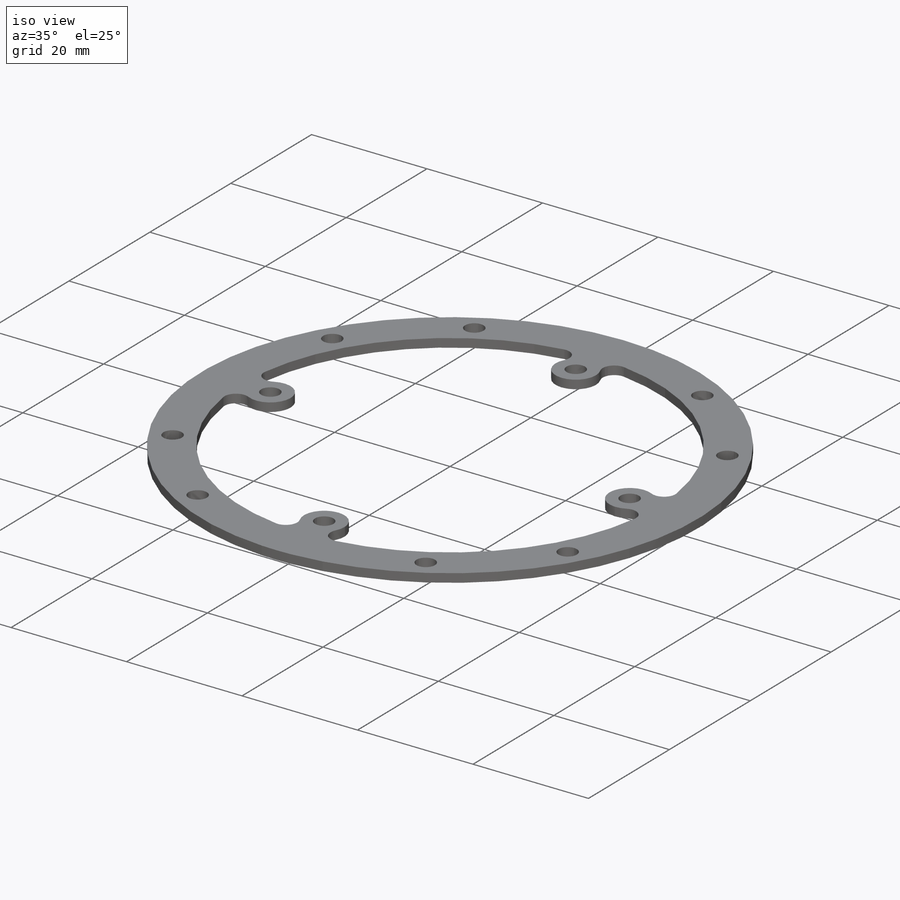
[diagram: iso view]
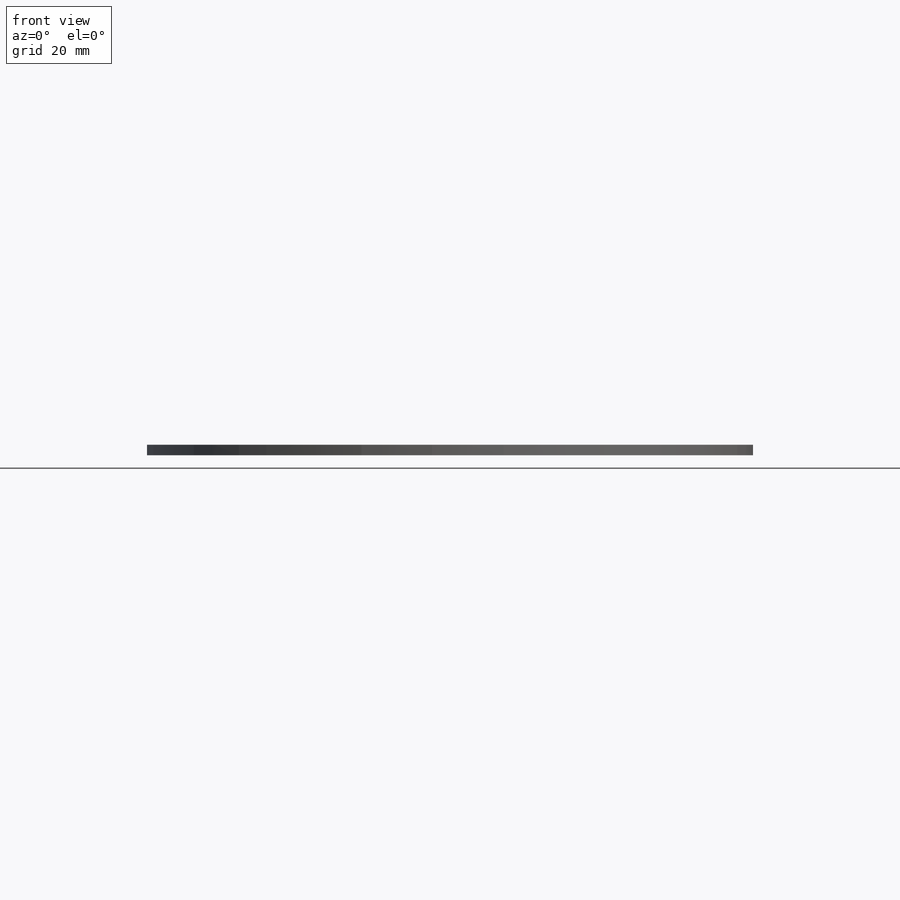
[diagram: front view]
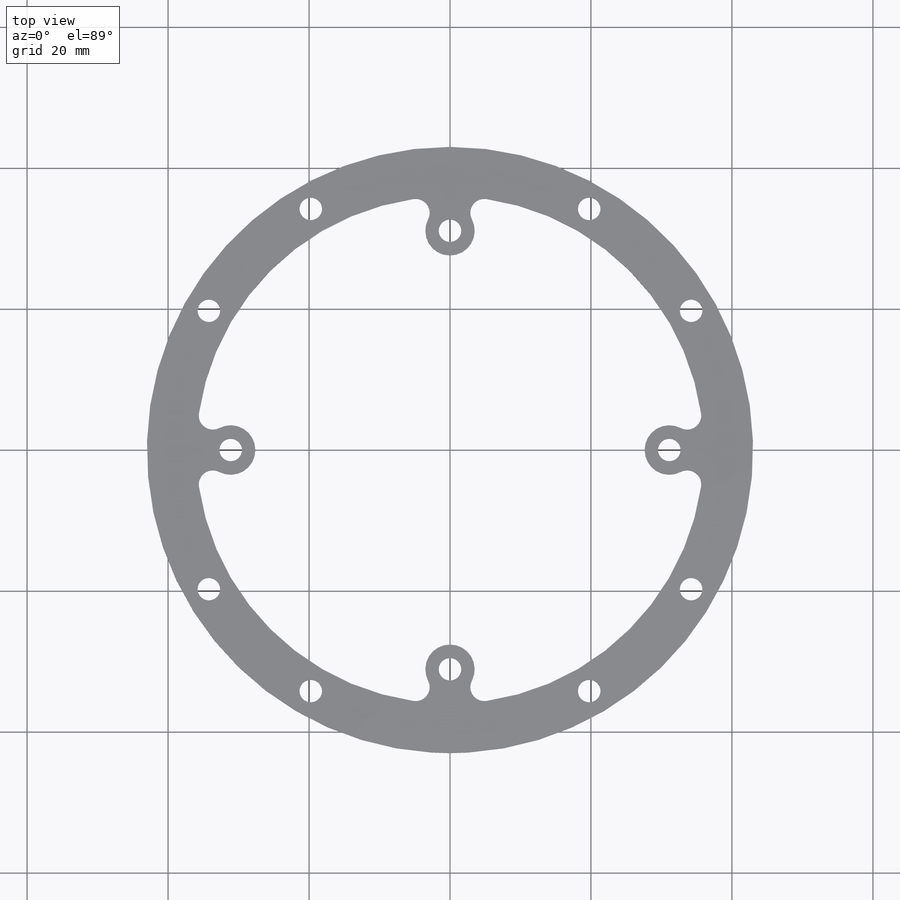
[diagram: top view]
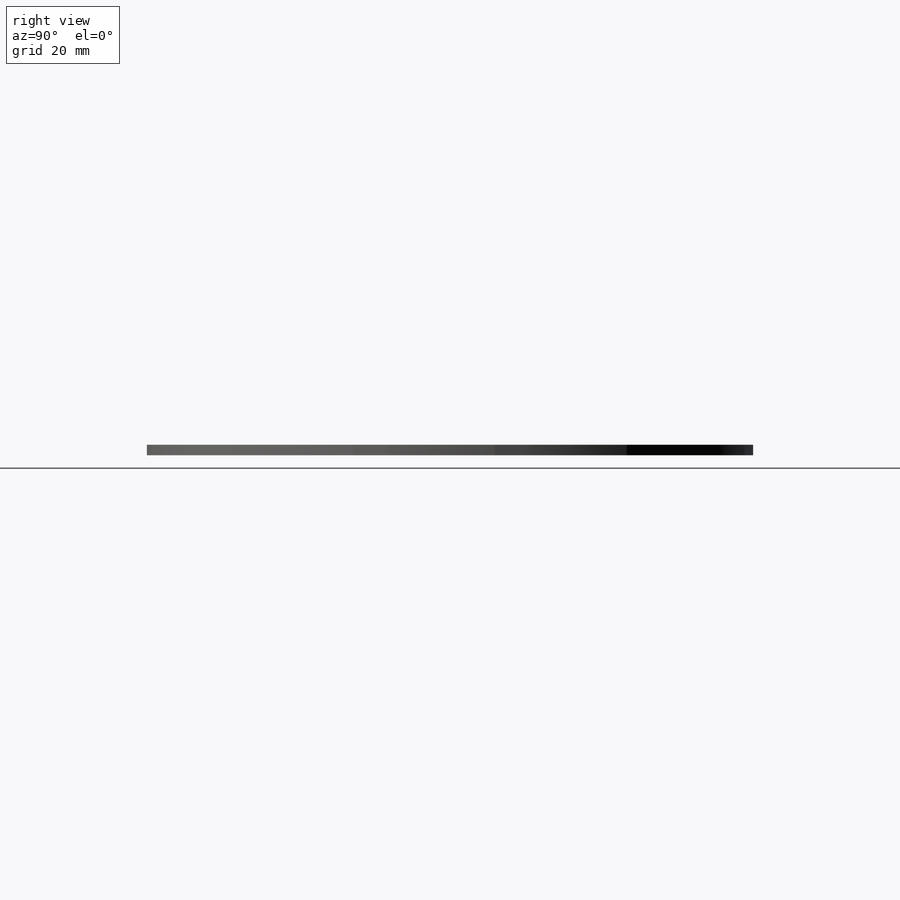
[diagram: right view]
SOLIDWORKS PART (.sldprt)
format: sldprt  version: not decoded by parser v0  size: 382,976 bytes
history: native  units: mm
features: sketch x4, material x1, extrude x1, hole x1, cut_extrude x1 (+13 scaffold rows collapsed)
feature tree (21):
  scaffold x13  (default folders/planes/origin — collapsed)
  material  "Thornel Mat VMA"
  sketch  "Sketch1"  dims[D1=86.0mm]
  extrude  "Boss-Extrude1"  Depth=1.5mm
  hole  "Ø3.2 (3.2) Diameter Hole1"  Diameter=3.2mm Depth=1.5mm
  sketch  "Sketch3"  dims[c1.D1=~40.250068mm c2.D1=30.0deg c2.D2=43.0mm c3.D2=30.0deg c3.D3=39.5mm c3.D4=39.5mm c3.D6=44.0mm c3.D5=4.0]
  sketch  "Sketch2"  dims[hole-wizard template sketch: 60 standard entries collapsed; hole parameters kept: c18.Thru Hole Depth=1.5mm]
  sketch  "Sketch4"  dims[c1.D1=~61.359973mm c1.D2=4.0mm c1.D3=7.0mm c2.D1=7.0mm c2.D4=4.0]
  cut_extrude  "Cut-Extrude1"  [1 undecoded]
decode coverage: 6 of 7 modeling features carry decoded parameters
note: ~ marks probable driven/reference dimensions
note: 1 parameter value undecoded
note: suppression state not decoded; provenance and decode notes live in map.json
